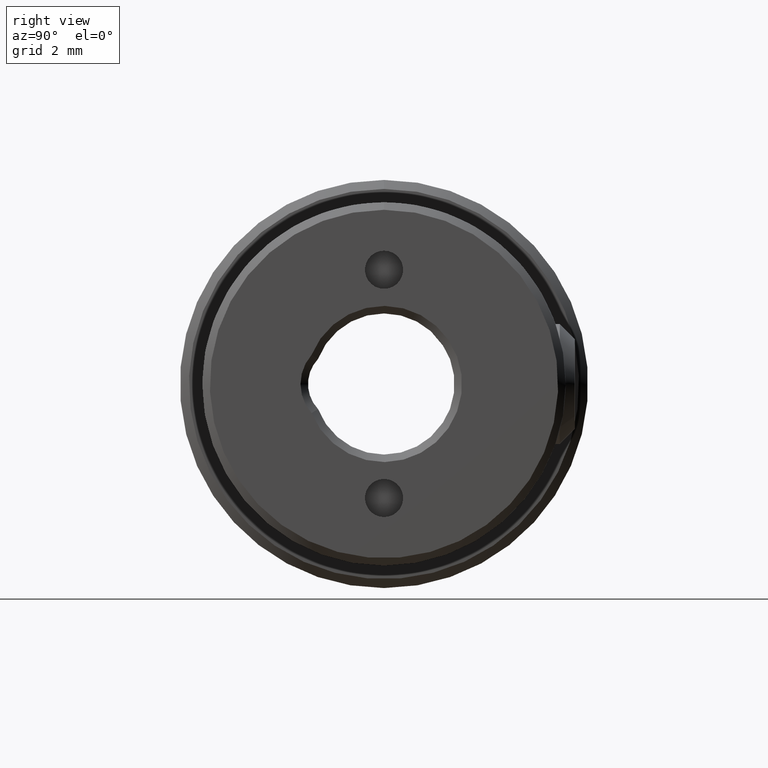
[diagram: clean part render]
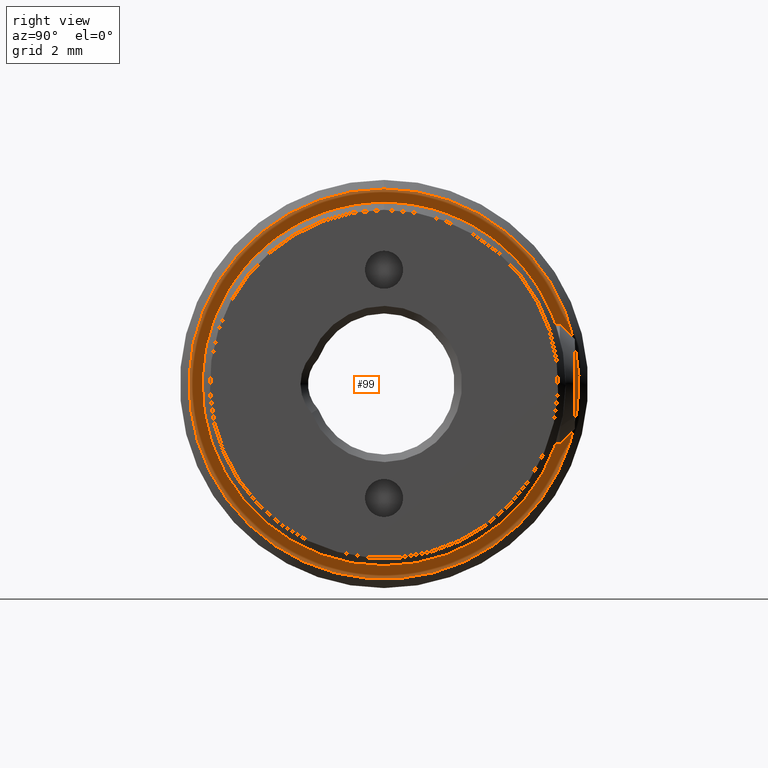
[diagram: same view with one face highlighted and labeled with its STEP entity id]
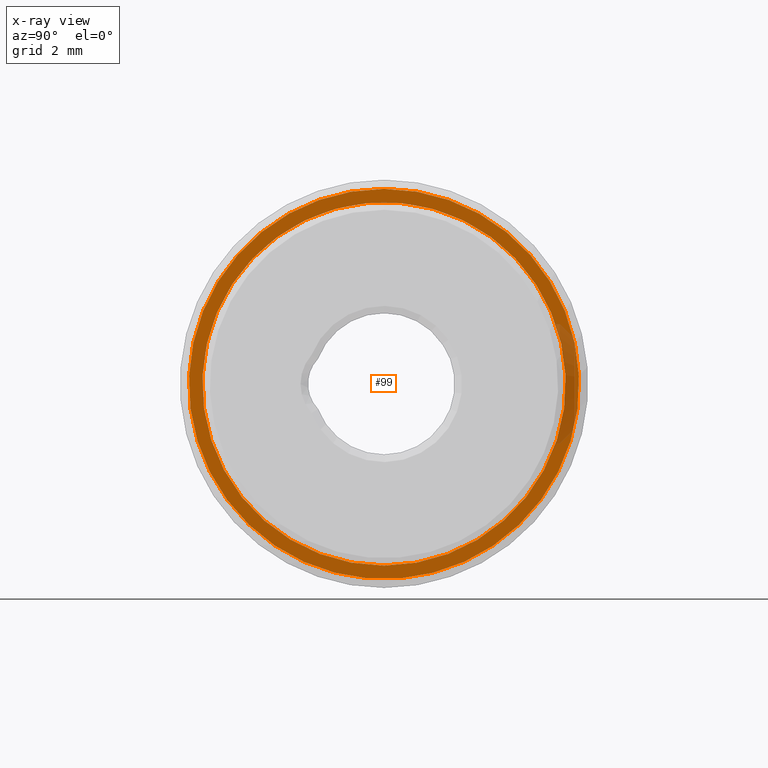
[diagram: x-ray of the same camera — body ghosted, the highlighted face saturated]
A machine part, right view. The second image highlights one B-rep face of the part: STEP entity #99.
The next image is the same camera in x-ray: the body ghosted, the highlighted face saturated — about 10% of this face is hidden behind the body in this view.
In plain terms, the highlighted planar face has unit normal (1, 0, 0).
Its self-contained STEP definition (entity closure, byte-faithful):
#99 = ADVANCED_FACE ( 'NONE', ( #900, #1115 ), #3175, .T. ) ;
#145 = DIRECTION ( 'NONE',  ( 0.000000000000000000, 0.000000000000000000, -1.000000000000000000 ) ) ;
#383 = DIRECTION ( 'NONE',  ( 1.000000000000000000, -0.000000000000000000, -0.000000000000000000 ) ) ;
#485 = CARTESIAN_POINT ( 'NONE',  ( 5.080000000020845619, 0.000000000000000000, 6.494999999915762601 ) ) ;
#547 = EDGE_LOOP ( 'NONE', ( #1408 ) ) ;
#642 = AXIS2_PLACEMENT_3D ( 'NONE', #1297, #1064, #1279 ) ;
#707 = CIRCLE ( 'NONE', #642, 6.049999999999999822 ) ;
#874 = AXIS2_PLACEMENT_3D ( 'NONE', #3035, #383, #1706 ) ;
#900 = FACE_BOUND ( 'NONE', #1574, .T. ) ;
#953 = CARTESIAN_POINT ( 'NONE',  ( 5.080000000000000071, 0.000000000000000000, 0.000000000000000000 ) ) ;
#1064 = DIRECTION ( 'NONE',  ( 1.000000000000000000, -0.000000000000000000, -0.000000000000000000 ) ) ;
#1115 = FACE_OUTER_BOUND ( 'NONE', #547, .T. ) ;
#1147 = AXIS2_PLACEMENT_3D ( 'NONE', #953, #1199, #145 ) ;
#1199 = DIRECTION ( 'NONE',  ( 1.000000000000000000, 0.000000000000000000, 0.000000000000000000 ) ) ;
#1279 = DIRECTION ( 'NONE',  ( 0.000000000000000000, 0.000000000000000000, -1.000000000000000000 ) ) ;
#1297 = CARTESIAN_POINT ( 'NONE',  ( 5.080000000000000959, 0.000000000000000000, 0.000000000000000000 ) ) ;
#1319 = CARTESIAN_POINT ( 'NONE',  ( 5.080000000000000959, 0.000000000000000000, -6.049999999999999822 ) ) ;
#1408 = ORIENTED_EDGE ( 'NONE', *, *, #3105, .T. ) ;
#1574 = EDGE_LOOP ( 'NONE', ( #1640 ) ) ;
#1640 = ORIENTED_EDGE ( 'NONE', *, *, #2166, .F. ) ;
#1706 = DIRECTION ( 'NONE',  ( 0.000000000000000000, 0.000000000000000000, 1.000000000000000000 ) ) ;
#2012 = VERTEX_POINT ( 'NONE', #485 ) ;
#2095 = VERTEX_POINT ( 'NONE', #1319 ) ;
#2166 = EDGE_CURVE ( 'NONE', #2095, #2095, #707, .T. ) ;
#2391 = CIRCLE ( 'NONE', #874, 6.494999999915762601 ) ;
#3035 = CARTESIAN_POINT ( 'NONE',  ( 5.080000000020845619, 0.000000000000000000, 0.000000000000000000 ) ) ;
#3105 = EDGE_CURVE ( 'NONE', #2012, #2012, #2391, .T. ) ;
#3175 = PLANE ( 'NONE',  #1147 ) ;